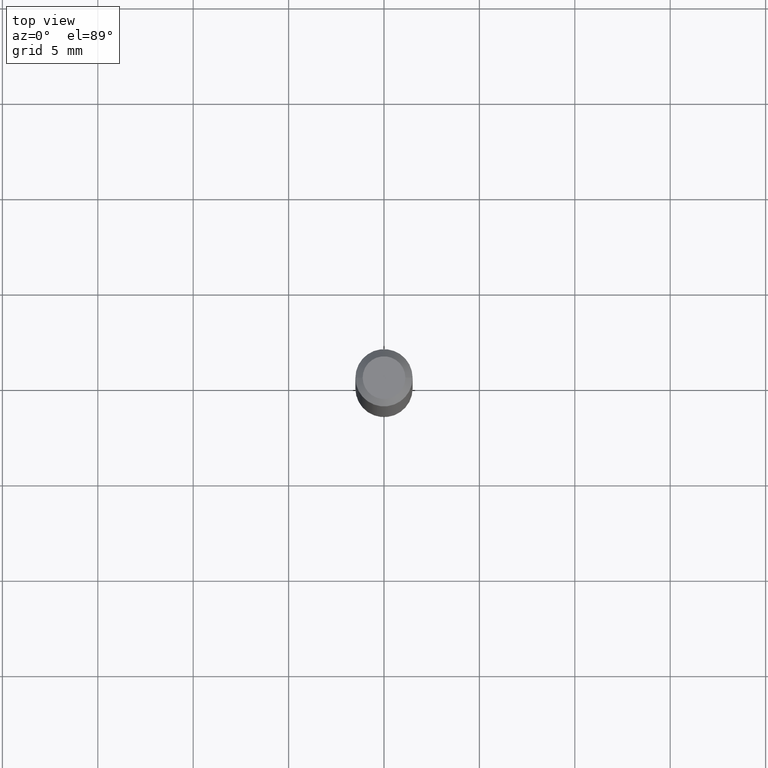
[diagram: clean part render]
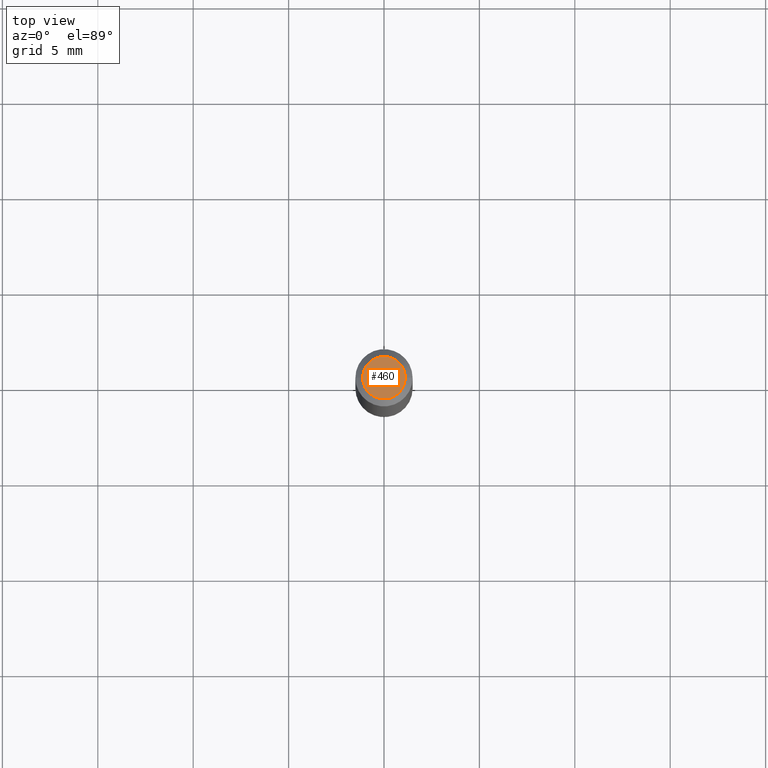
[diagram: same view with one face highlighted and labeled with its STEP entity id]
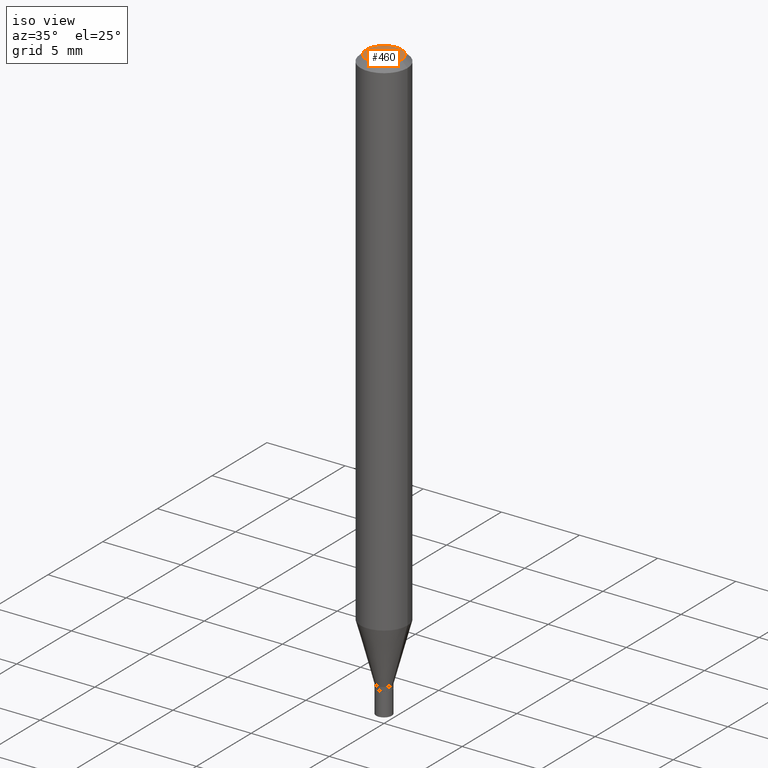
[diagram: same view with one face highlighted and labeled with its STEP entity id]
A machine part, top view. The second image highlights one B-rep face of the part: STEP entity #460.
A second angle (iso view) of the same face is appended — the face is thin or edge-on in the first view.
In plain terms, the highlighted planar face has unit normal (0, -0, -1).
Its self-contained STEP definition (entity closure, byte-faithful):
#6 = DIRECTION ( 'NONE',  ( -1.000000000000000000, 6.982962677686265922E-15, -4.876176775795935793E-29 ) ) ;
#14 = DIRECTION ( 'NONE',  ( -2.445468806185136597E-29, 3.491481338843145583E-15, 1.000000000000000000 ) ) ;
#30 = FACE_OUTER_BOUND ( 'NONE', #353, .T. ) ;
#49 = CARTESIAN_POINT ( 'NONE',  ( -8.641182519006283330E-45, 1.233731848647590289E-30, 3.533548453838708869E-16 ) ) ;
#59 = DIRECTION ( 'NONE',  ( 1.000000000000000000, -6.982962677686265922E-15, 4.819687581474398999E-29 ) ) ;
#65 = CARTESIAN_POINT ( 'NONE',  ( 0.04404999999999999888, -3.798447818264454163E-16, 3.533548453838733521E-16 ) ) ;
#82 = CIRCLE ( 'NONE', #309, 0.04404999999999999888 ) ;
#99 = ORIENTED_EDGE ( 'NONE', *, *, #343, .T. ) ;
#101 = CARTESIAN_POINT ( 'NONE',  ( 3.075995059520799729E-16, 0.04404999999999999888, 2.287766971589489619E-17 ) ) ;
#109 = DIRECTION ( 'NONE',  ( 1.000000000000000000, -6.982962677686265922E-15, 4.819687581474398999E-29 ) ) ;
#121 = EDGE_CURVE ( 'NONE', #143, #463, #226, .T. ) ;
#122 = AXIS2_PLACEMENT_3D ( 'NONE', #101, #390, #6 ) ;
#138 = PLANE ( 'NONE',  #122 ) ;
#143 = VERTEX_POINT ( 'NONE', #403 ) ;
#175 = ORIENTED_EDGE ( 'NONE', *, *, #121, .T. ) ;
#226 = CIRCLE ( 'NONE', #430, 0.04404999999999999888 ) ;
#236 = CARTESIAN_POINT ( 'NONE',  ( -8.641182519006283330E-45, 1.233731848647590289E-30, 3.533548453838708869E-16 ) ) ;
#309 = AXIS2_PLACEMENT_3D ( 'NONE', #236, #384, #59 ) ;
#343 = EDGE_CURVE ( 'NONE', #463, #143, #82, .T. ) ;
#353 = EDGE_LOOP ( 'NONE', ( #175, #99 ) ) ;
#384 = DIRECTION ( 'NONE',  ( -2.445468806185136597E-29, 3.491481338843145583E-15, 1.000000000000000000 ) ) ;
#390 = DIRECTION ( 'NONE',  ( 2.438088387897960049E-29, -3.491481338843145188E-15, -1.000000000000000000 ) ) ;
#403 = CARTESIAN_POINT ( 'NONE',  ( -0.04404999999999999888, 3.337856159934040055E-16, 3.533548453838686682E-16 ) ) ;
#430 = AXIS2_PLACEMENT_3D ( 'NONE', #49, #14, #109 ) ;
#460 = ADVANCED_FACE ( 'NONE', ( #30 ), #138, .F. ) ;
#463 = VERTEX_POINT ( 'NONE', #65 ) ;